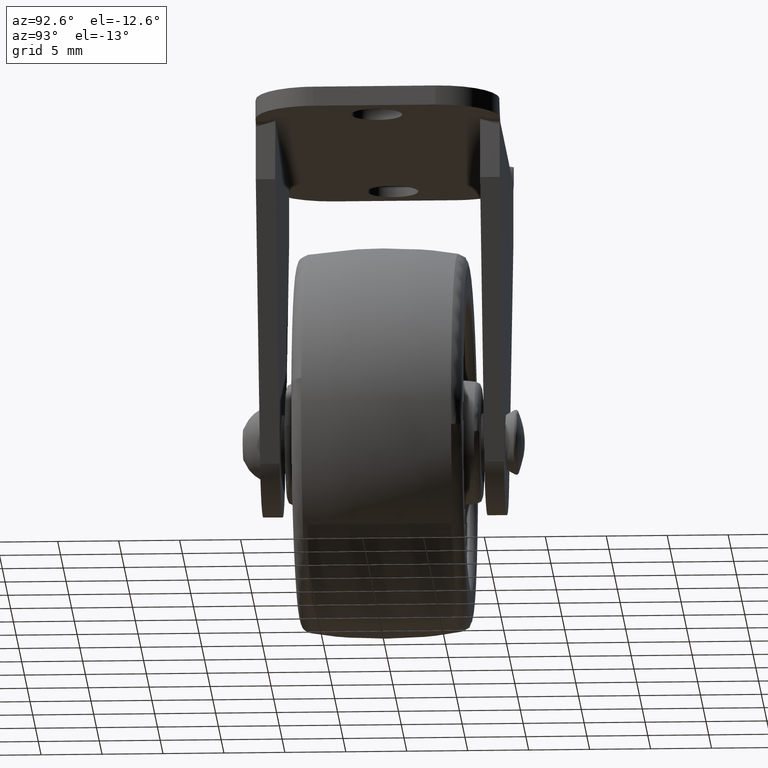
[diagram: clean part render]
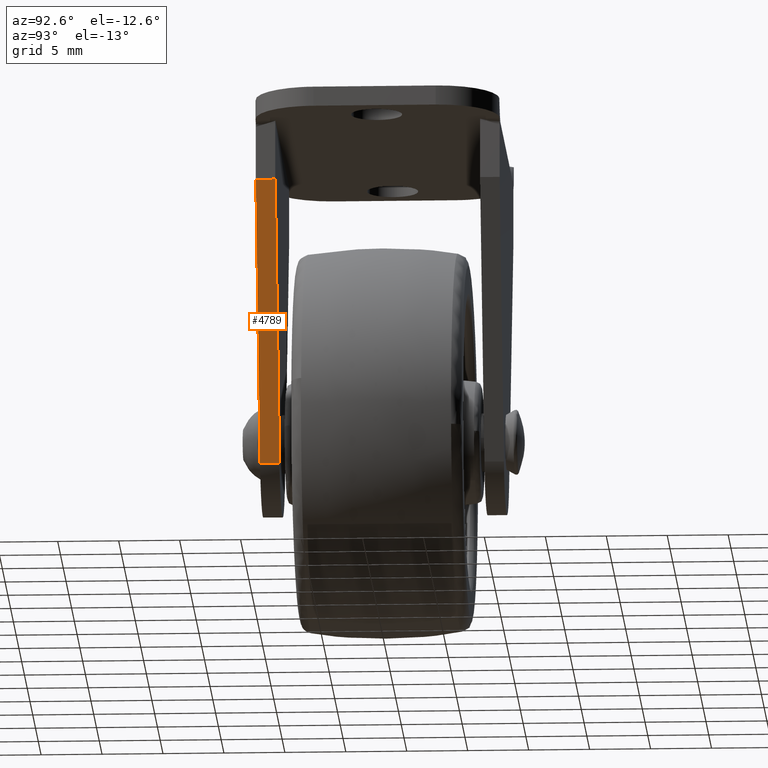
[diagram: same view with one face highlighted and labeled with its STEP entity id]
A machine part, auxiliary view. The second image highlights one B-rep face of the part: STEP entity #4789.
In plain terms, the highlighted face is a freeform B-spline surface patch.
Its self-contained STEP definition (entity closure, byte-faithful):
#4754=CARTESIAN_POINT('',(4.328718966030579,-10.079920014047991,-3.763727632206431));
#4755=CARTESIAN_POINT('',(12.888737235120960,-10.079920014047991,20.606742357876460));
#4756=CARTESIAN_POINT('',(4.328718966030579,-8.320079599714035,-3.763727632206431));
#4757=CARTESIAN_POINT('',(12.888737235120960,-8.320079599714035,20.606742357876460));
#4758=B_SPLINE_SURFACE_WITH_KNOTS('',1,1,((#4754,#4756),(#4755,#4757)),.UNSPECIFIED.,.F.,.F.,.U.,(2,2),(2,2),(0.0,25.830093308091080),(0.041708326016739,0.958291875148937),.UNSPECIFIED.);
#4759=CARTESIAN_POINT('',(4.717456999999799,-8.400000000000000,-2.656985999999905));
#4760=VERTEX_POINT('',#4759);
#4761=CARTESIAN_POINT('',(12.500000000000000,-8.400000000000000,19.500000000000000));
#4762=VERTEX_POINT('',#4761);
#4763=CARTESIAN_POINT('',(4.717456999999799,-8.400000000000000,-2.656985999999905));
#4764=CARTESIAN_POINT('',(12.500000000000000,-8.400000000000000,19.500000000000000));
#4765=QUASI_UNIFORM_CURVE('',1,(#4763,#4764),.UNSPECIFIED.,.F.,.U.);
#4766=EDGE_CURVE('',#4760,#4762,#4765,.T.);
#4767=ORIENTED_EDGE('',*,*,#4766,.T.);
#4768=CARTESIAN_POINT('',(12.500000000000000,-10.000000000000121,19.500000000000000));
#4769=VERTEX_POINT('',#4768);
#4770=CARTESIAN_POINT('',(12.500000000000000,-8.400000000000000,19.500000000000000));
#4771=CARTESIAN_POINT('',(12.500000000000000,-10.000000000000121,19.500000000000000));
#4772=QUASI_UNIFORM_CURVE('',1,(#4770,#4771),.UNSPECIFIED.,.F.,.U.);
#4773=EDGE_CURVE('',#4762,#4769,#4772,.T.);
#4774=ORIENTED_EDGE('',*,*,#4773,.T.);
#4775=CARTESIAN_POINT('',(4.717456999999799,-10.000000000000121,-2.656985999999905));
#4776=VERTEX_POINT('',#4775);
#4777=CARTESIAN_POINT('',(12.500000000000000,-10.000000000000121,19.500000000000000));
#4778=CARTESIAN_POINT('',(4.717456999999799,-10.000000000000121,-2.656985999999905));
#4779=QUASI_UNIFORM_CURVE('',1,(#4777,#4778),.UNSPECIFIED.,.F.,.U.);
#4780=EDGE_CURVE('',#4769,#4776,#4779,.T.);
#4781=ORIENTED_EDGE('',*,*,#4780,.T.);
#4782=CARTESIAN_POINT('',(4.717456999999799,-8.400000000000000,-2.656985999999905));
#4783=CARTESIAN_POINT('',(4.717456999999799,-10.000000000000121,-2.656985999999905));
#4784=QUASI_UNIFORM_CURVE('',1,(#4782,#4783),.UNSPECIFIED.,.F.,.U.);
#4785=EDGE_CURVE('',#4760,#4776,#4784,.T.);
#4786=ORIENTED_EDGE('',*,*,#4785,.F.);
#4787=EDGE_LOOP('',(#4767,#4774,#4781,#4786));
#4788=FACE_OUTER_BOUND('',#4787,.T.);
#4789=ADVANCED_FACE('',(#4788),#4758,.F.);